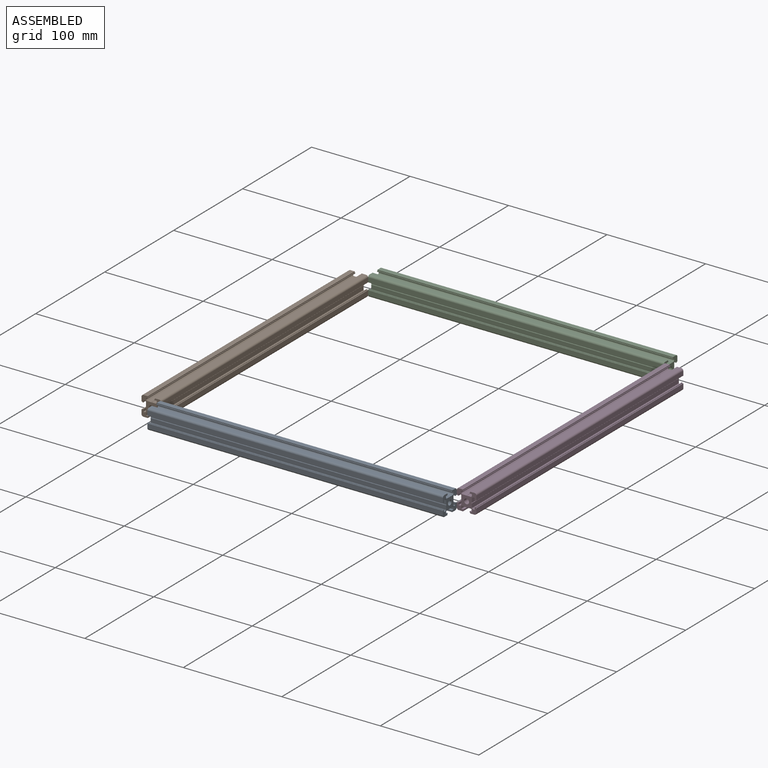
[diagram: assembled view]
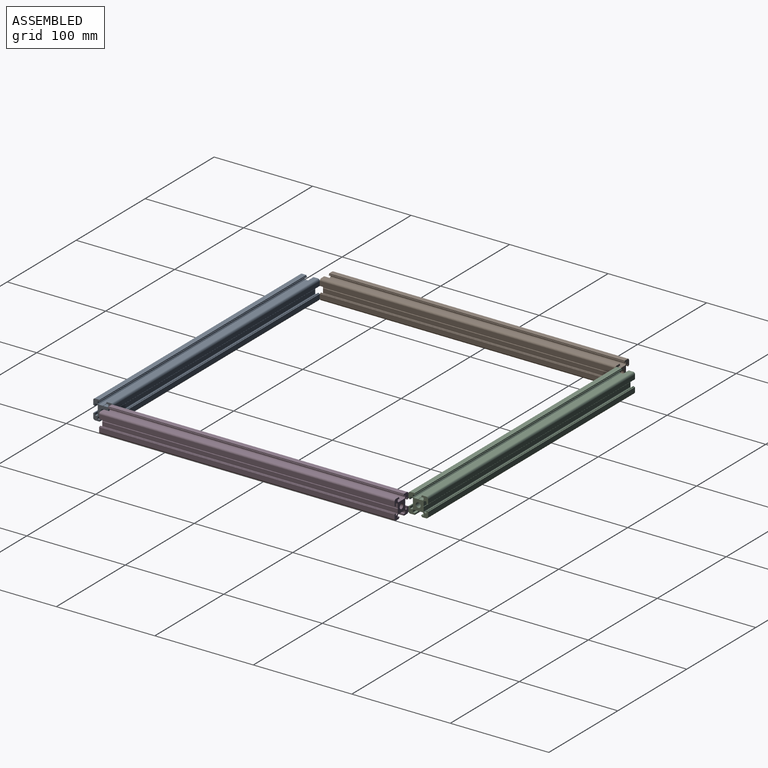
[diagram: assembled view, second angle]
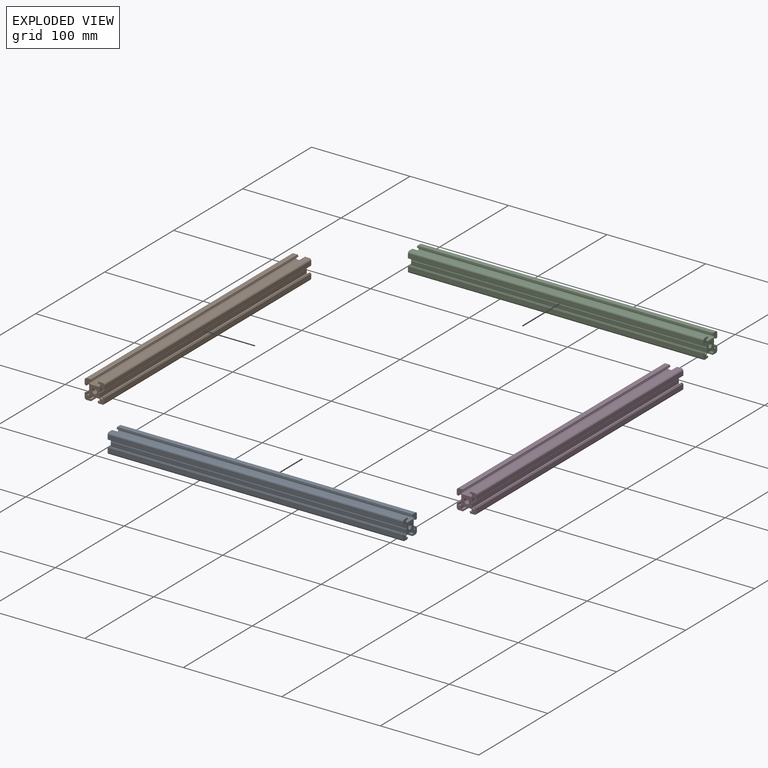
[diagram: exploded view]
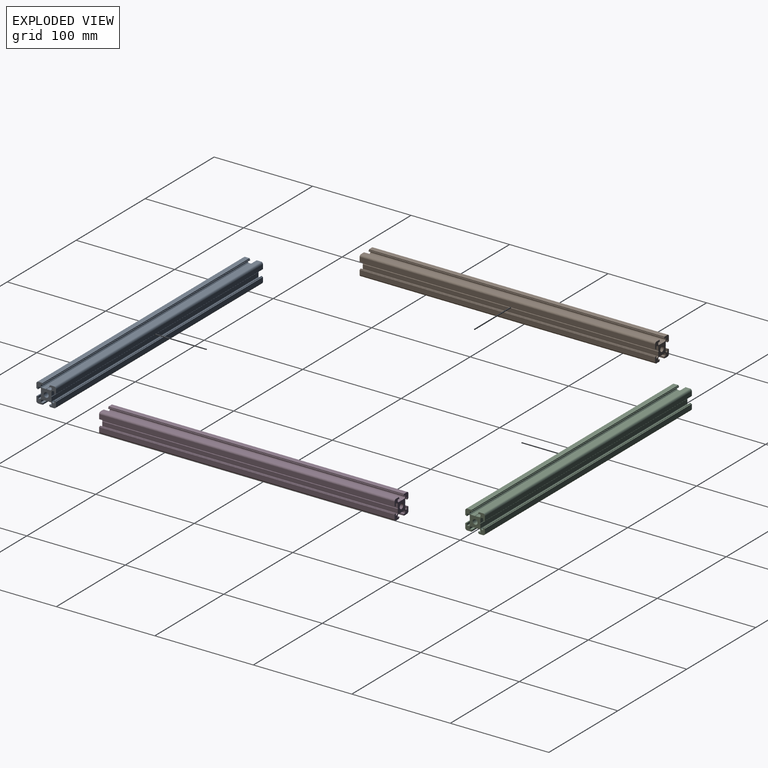
[diagram: exploded view, second angle]
ASSEMBLY  parts=4 mates=9
PART A: 79 faces, bbox 20x20x300 mm
  f0: plane 300x0.5mm, normal (0,-1,0), area 150mm2, adj f1,f75,f77,f78
  f1: plane 300x0.9mm, normal (-1,0,0), area 270mm2, adj f0,f2,f77,f78
  f2: plane 300x4.4mm, normal (0,-1,0), area 1320mm2, adj f1,f3,f77,f78
  f3: cylinder r=2mm len=300mm, axis (0,0,-1), area 942.5mm2, adj f2,f4,f77,f78
  f4: plane 300x4.4mm, normal (1,0,0), area 1320mm2, adj f3,f5,f77,f78
  f5: plane 300x0.9mm, normal (0,1,0), area 270mm2, adj f4,f6,f77,f78
  f6: plane 300x0.5mm, normal (1,0,0), area 150mm2, adj f5,f7,f77,f78
  f7: plane 300x0.9mm, normal (0,1,0), area 270mm2, adj f6,f8,f77,f78
  f8: plane 300x2.35mm, normal (-1,0,0), area 705mm2, adj f7,f9,f77,f78
  f9: plane 300x1.9mm, normal (0,1,0), area 570.4mm2, adj f8,f10,f77,f78
  f10: plane 300x0.87mm, normal (0.71,0.71,0), area 369.2mm2, adj f9,f11,f77,f78
  f11: plane 300x4.33mm, normal (1,0,0), area 1298.9mm2, adj f10,f12,f77,f78
  f12: plane 300x0.5mm, normal (0.45,0.89,0), area 167.7mm2, adj f11,f13,f77,f78
  f13: plane 300x0.5mm, normal (0.45,-0.89,0), area 167.7mm2, adj f12,f14,f77,f78
  f14: plane 300x4.33mm, normal (1,0,0), area 1298.9mm2, adj f13,f15,f77,f78
  f15: plane 300x0.87mm, normal (0.71,-0.71,0), area 369.2mm2, adj f14,f16,f77,f78
  f16: plane 300x1.9mm, normal (0,-1,0), area 570.4mm2, adj f15,f17,f77,f78
  f17: plane 300x2.35mm, normal (-1,0,0), area 705mm2, adj f16,f18,f77,f78
  f18: plane 300x0.9mm, normal (0,-1,0), area 270mm2, adj f17,f19,f77,f78
  f19: plane 300x0.5mm, normal (1,0,0), area 150mm2, adj f18,f20,f77,f78
  f20: plane 300x0.9mm, normal (0,-1,0), area 270mm2, adj f19,f21,f77,f78
  f21: plane 300x4.4mm, normal (1,0,0), area 1320mm2, adj f20,f22,f77,f78
  f22: cylinder r=2mm len=300mm, axis (0,0,-1), area 942.5mm2, adj f21,f23,f77,f78
  f23: plane 300x4.4mm, normal (0,1,0), area 1320mm2, adj f22,f24,f77,f78
  f24: plane 300x0.9mm, normal (-1,0,0), area 270mm2, adj f23,f25,f77,f78
  f25: plane 300x0.5mm, normal (0,1,0), area 150mm2, adj f24,f26,f77,f78
  f26: plane 300x0.9mm, normal (-1,0,0), area 270mm2, adj f25,f27,f77,f78
  f27: plane 300x2.35mm, normal (0,-1,0), area 705mm2, adj f26,f28,f77,f78
  f28: plane 300x1.9mm, normal (-1,0,0), area 570.4mm2, adj f27,f29,f77,f78
  f29: plane 300x0.87mm, normal (-0.71,0.71,0), area 369.2mm2, adj f28,f30,f77,f78
  f30: plane 300x4.33mm, normal (0,1,0), area 1298.9mm2, adj f29,f31,f77,f78
  f31: plane 300x0.5mm, normal (-0.89,0.45,0), area 167.7mm2, adj f30,f32,f77,f78
  f32: plane 300x0.5mm, normal (0.89,0.45,0), area 167.7mm2, adj f31,f33,f77,f78
  f33: plane 300x4.33mm, normal (0,1,0), area 1298.9mm2, adj f32,f34,f77,f78
  f34: plane 300x0.87mm, normal (0.71,0.71,0), area 369.2mm2, adj f33,f35,f77,f78
  f35: plane 300x1.9mm, normal (1,0,0), area 570.4mm2, adj f34,f36,f77,f78
  f36: plane 300x2.35mm, normal (0,-1,0), area 705mm2, adj f35,f37,f77,f78
  f37: plane 300x0.9mm, normal (1,0,0), area 270mm2, adj f36,f38,f77,f78
  f38: plane 300x0.5mm, normal (0,1,0), area 150mm2, adj f37,f39,f77,f78
  f39: plane 300x0.9mm, normal (1,0,0), area 270mm2, adj f38,f40,f77,f78
  f40: plane 300x4.4mm, normal (0,1,0), area 1320mm2, adj f39,f41,f77,f78
  f41: cylinder r=2mm len=300mm, axis (0,0,-1), area 942.5mm2, adj f40,f42,f77,f78
  f42: plane 300x4.4mm, normal (-1,0,0), area 1320mm2, adj f41,f43,f77,f78
  f43: plane 300x0.9mm, normal (0,-1,0), area 270mm2, adj f42,f44,f77,f78
  f44: plane 300x0.5mm, normal (-1,0,0), area 150mm2, adj f43,f45,f77,f78
  f45: plane 300x0.9mm, normal (0,-1,0), area 270mm2, adj f44,f46,f77,f78
  f46: plane 300x2.35mm, normal (1,0,0), area 705mm2, adj f45,f47,f77,f78
  f47: plane 300x1.9mm, normal (0,-1,0), area 570.4mm2, adj f46,f48,f77,f78
  f48: plane 300x0.87mm, normal (-0.71,-0.71,0), area 369.2mm2, adj f47,f49,f77,f78
  f49: plane 300x4.33mm, normal (-1,0,0), area 1298.9mm2, adj f48,f50,f77,f78
  f50: plane 300x0.5mm, normal (-0.45,-0.89,0), area 167.7mm2, adj f49,f51,f77,f78
  f51: plane 300x0.5mm, normal (-0.45,0.89,0), area 167.7mm2, adj f50,f52,f77,f78
  f52: plane 300x4.33mm, normal (-1,0,0), area 1298.9mm2, adj f51,f53,f77,f78
  f53: plane 300x0.87mm, normal (-0.71,0.71,0), area 369.2mm2, adj f52,f54,f77,f78
  f54: plane 300x1.9mm, normal (0,1,0), area 570.4mm2, adj f53,f55,f77,f78
  f55: plane 300x2.35mm, normal (1,0,0), area 705mm2, adj f54,f56,f77,f78
  f56: plane 300x0.9mm, normal (0,1,0), area 270mm2, adj f55,f57,f77,f78
  f57: plane 300x0.5mm, normal (-1,0,0), area 150mm2, adj f56,f58,f77,f78
  f58: plane 300x0.9mm, normal (0,1,0), area 270mm2, adj f57,f59,f77,f78
  f59: plane 300x4.4mm, normal (-1,0,0), area 1320mm2, adj f58,f60,f77,f78
  f60: cylinder r=2mm len=300mm, axis (0,0,-1), area 942.5mm2, adj f59,f61,f77,f78
  f61: plane 300x4.4mm, normal (0,-1,0), area 1320mm2, adj f60,f62,f77,f78
  f62: plane 300x0.9mm, normal (1,0,0), area 270mm2, adj f61,f63,f77,f78
  f63: plane 300x0.5mm, normal (0,-1,0), area 150mm2, adj f62,f64,f77,f78
  f64: plane 300x0.9mm, normal (1,0,0), area 270mm2, adj f63,f65,f77,f78
  f65: plane 300x2.35mm, normal (0,1,0), area 705mm2, adj f64,f66,f77,f78
  f66: plane 300x1.9mm, normal (1,0,0), area 570.4mm2, adj f65,f67,f77,f78
  f67: plane 300x0.87mm, normal (0.71,-0.71,0), area 369.2mm2, adj f66,f68,f77,f78
  f68: plane 300x4.33mm, normal (0,-1,0), area 1298.9mm2, adj f67,f69,f77,f78
  f69: plane 300x0.5mm, normal (0.89,-0.45,0), area 167.7mm2, adj f68,f70,f77,f78
  f70: plane 300x0.5mm, normal (-0.89,-0.45,0), area 167.7mm2, adj f69,f71,f77,f78
  f71: plane 300x4.33mm, normal (0,-1,0), area 1298.9mm2, adj f70,f72,f77,f78
  f72: plane 300x0.87mm, normal (-0.71,-0.71,0), area 369.2mm2, adj f71,f73,f77,f78
  f73: plane 300x1.9mm, normal (-1,0,0), area 570.4mm2, adj f72,f74,f77,f78
  f74: plane 300x2.35mm, normal (0,1,0), area 705mm2, adj f73,f75,f77,f78
  f75: plane 300x0.9mm, normal (-1,0,0), area 270mm2, adj f0,f74,f77,f78
  f76: cylinder r=2.5mm len=300mm, axis (0,0,-1), area 4712.4mm2, adj f77,f78
  f77: plane 20x20mm, normal (0,0,1), area 210.4mm2, adj f0,f1,f2,f3,f4,f5,f6,f7
  f78: plane 20x20mm, normal (0,0,-1), area 210.4mm2, adj f0,f1,f2,f3,f4,f5,f6,f7
PART B: same geometry as A
PART C: same geometry as A
PART D: same geometry as A
PLACE A rot(axis=(0,1,0),90deg) t=(-129.97,-313.56,-47.12)mm
PLACE B rot(axis=(1,0,0),90deg) t=(-139.97,-3.56,-47.12)mm
PLACE C rot(axis=(0.71,0,-0.71),180deg) t=(170.03,6.44,-47.12)mm
PLACE D rot(axis=(0,0.71,-0.71),180deg) t=(180.03,-3.56,-47.12)mm
MATE planar D.f23 <-> C.f4  axis (0,0,-1) through (174.23,-153.56,-57.12)mm
MATE planar B.f61 <-> A.f21  axis (0,0,-1) through (-145.77,-153.56,-57.12)mm
MATE planar C.f40 <-> D.f76  axis (0,-1,0) through (20.03,-3.56,-41.32)mm
MATE planar D.f77 <-> A.f40  axis (0,-1,0) through (180.03,-303.56,-52.05)mm
MATE planar B.f77 <-> A.f40  axis (0,-1,0) through (-144.89,-303.56,-47.12)mm
MATE planar D.f21 <-> C.f78  axis (-1,0,0) through (170.03,-153.56,-52.92)mm
MATE planar A.f76 <-> D.f4  axis (1,0,0) through (170.03,-313.56,-47.12)mm
MATE planar D.f23 <-> A.f4  axis (0,0,-1) through (174.23,-153.56,-57.12)mm
MATE planar A.f78 <-> B.f4  axis (-1,0,0) through (-129.97,-313.56,-52.05)mm
